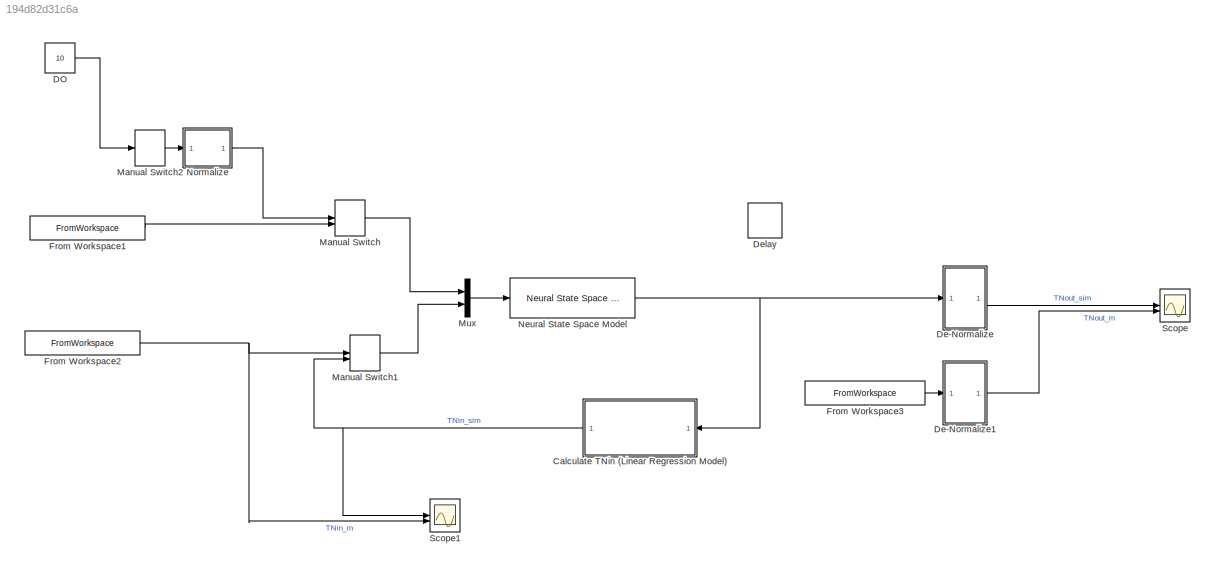
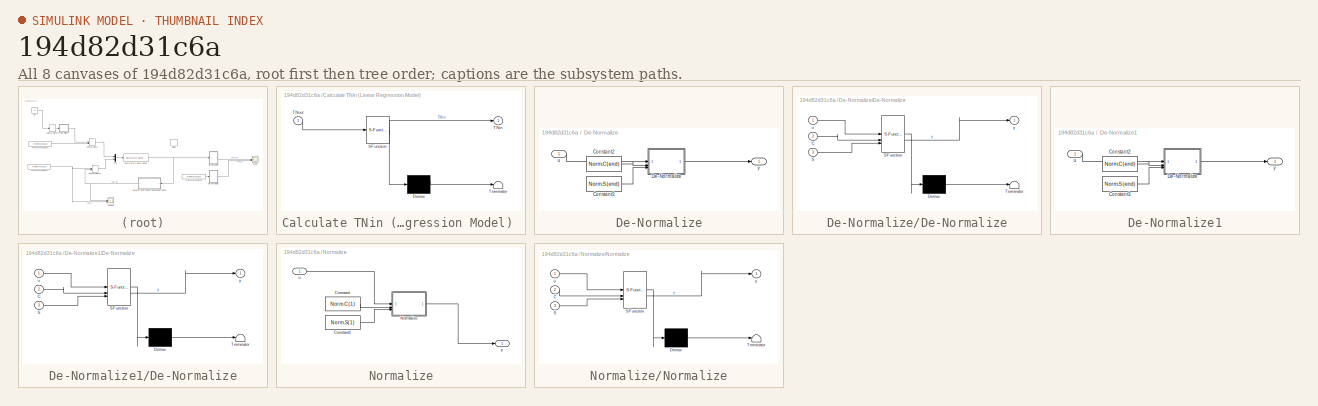
[diagram: thumbnail index - all 8 canvases of the model, root first then tree order]
MODEL slx_194d82d31c6a
KIND model
CONFIG AbsTol = auto
CONFIG EnableMultiTasking = off
CONFIG FixedStep = 0.0104
CONFIG InitFcn = Init_TestModel;
CONFIG MaxStep = auto
CONFIG MinStep = auto
CONFIG RelTol = 1e-3
CONFIG SampleTimeConstraint = Unconstrained
CONFIG SolverName = ode45
CONFIG StartFcn = Init_TestModel;
CONFIG StartTime = 0.0
CONFIG StopTime = 1
BLOCK [SubSystem] Calculate TNin (Linear Regression Model) 
  ErrorFcn = Stateflow.Translate.translate
  PermitHierarchicalResolution = ExplicitOnly
  SFBlockType = MATLAB Function
  TreatAsAtomicUnit = on
BLOCK [Demux] Calculate TNin (Linear Regression Model) / Demux 
  Outputs = 1
BLOCK [S-Function] Calculate TNin (Linear Regression Model) / SFunction 
  EnableBusSupport = on
  FunctionName = sf_sfun
  Parameters = p_reg
  PortCounts = [1 2]
  SFcnIsStateOwnerBlock = off
  SFunctionDeploymentMode = off
  Tag = Stateflow S-Function 2
BLOCK [Terminator] Calculate TNin (Linear Regression Model) / Terminator 
BLOCK [Outport] Calculate TNin (Linear Regression Model) /TNin
BLOCK [Inport] Calculate TNin (Linear Regression Model) /TNout
BLOCK [Constant] DO
  Value = 10
BLOCK [SubSystem] De-Normalize
BLOCK [Constant] De-Normalize/Constant2
  Value = Norm.C(end)
BLOCK [Constant] De-Normalize/Constant3
  Value = Norm.S(end)
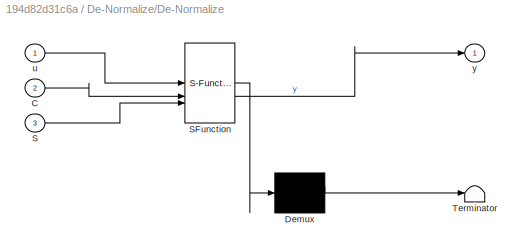
BLOCK [SubSystem] De-Normalize/De-Normalize
  ErrorFcn = Stateflow.Translate.translate
  PermitHierarchicalResolution = ExplicitOnly
  SFBlockType = MATLAB Function
  TreatAsAtomicUnit = on
BLOCK [Demux] De-Normalize/De-Normalize/ Demux 
  Outputs = 1
BLOCK [S-Function] De-Normalize/De-Normalize/ SFunction 
  EnableBusSupport = on
  FunctionName = sf_sfun
  PortCounts = [3 2]
  SFcnIsStateOwnerBlock = off
  SFunctionDeploymentMode = off
  Tag = Stateflow S-Function 3
BLOCK [Terminator] De-Normalize/De-Normalize/ Terminator 
BLOCK [Inport] De-Normalize/De-Normalize/C
  Port = 2
BLOCK [Inport] De-Normalize/De-Normalize/S
  Port = 3
BLOCK [Inport] De-Normalize/De-Normalize/u
BLOCK [Outport] De-Normalize/De-Normalize/y
BLOCK [Inport] De-Normalize/u
BLOCK [Outport] De-Normalize/y
BLOCK [SubSystem] De-Normalize1
BLOCK [Constant] De-Normalize1/Constant2
  Value = Norm.C(end)
BLOCK [Constant] De-Normalize1/Constant3
  Value = Norm.S(end)
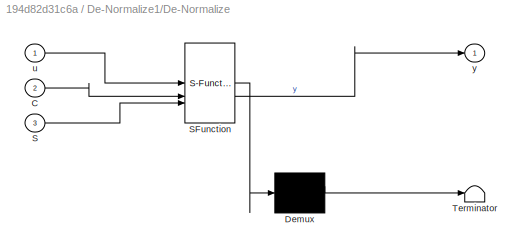
BLOCK [SubSystem] De-Normalize1/De-Normalize
  ErrorFcn = Stateflow.Translate.translate
  PermitHierarchicalResolution = ExplicitOnly
  SFBlockType = MATLAB Function
  TreatAsAtomicUnit = on
BLOCK [Demux] De-Normalize1/De-Normalize/ Demux 
  Outputs = 1
BLOCK [S-Function] De-Normalize1/De-Normalize/ SFunction 
  EnableBusSupport = on
  FunctionName = sf_sfun
  PortCounts = [3 2]
  SFcnIsStateOwnerBlock = off
  SFunctionDeploymentMode = off
  Tag = Stateflow S-Function 4
BLOCK [Terminator] De-Normalize1/De-Normalize/ Terminator 
BLOCK [Inport] De-Normalize1/De-Normalize/C
  Port = 2
BLOCK [Inport] De-Normalize1/De-Normalize/S
  Port = 3
BLOCK [Inport] De-Normalize1/De-Normalize/u
BLOCK [Outport] De-Normalize1/De-Normalize/y
BLOCK [Inport] De-Normalize1/u
BLOCK [Outport] De-Normalize1/y
BLOCK [Delay] Delay
  DelayLength = 1
  InputPortMap = u0
  NameLocation = left
BLOCK [FromWorkspace] From Workspace1
  VariableName = [DataRep(:,1),DataRep(:,2)]
BLOCK [FromWorkspace] From Workspace2
  VariableName = [DataRep(:,1),DataRep(:,3)]
BLOCK [FromWorkspace] From Workspace3
  VariableName = [DataRep(:,1),DataRep(:,end)]
BLOCK [ManualSwitch] Manual Switch
  CurrentSetting = 0
BLOCK [ManualSwitch] Manual Switch1
  CurrentSetting = 0
BLOCK [ManualSwitch] Manual Switch2
BLOCK [Mux] Mux
  DisplayOption = bar
  Inputs = 2
BLOCK [Reference] Neural State Space Model  REF=slident/Models/Neural State Space Model  (lib defined in mdl_f7d4911ca73a)
  SourceBlock = slident/Models/Neural State Space Model
  SourceType = Neural State Space Model
BLOCK [SubSystem] Normalize
BLOCK [Constant] Normalize/Constant
  Value = Norm.C(1)
BLOCK [Constant] Normalize/Constant1
  Value = Norm.S(1)
BLOCK [SubSystem] Normalize/Normalize
  ErrorFcn = Stateflow.Translate.translate
  PermitHierarchicalResolution = ExplicitOnly
  SFBlockType = MATLAB Function
  TreatAsAtomicUnit = on
BLOCK [Demux] Normalize/Normalize/ Demux 
  Outputs = 1
BLOCK [S-Function] Normalize/Normalize/ SFunction 
  EnableBusSupport = on
  FunctionName = sf_sfun
  PortCounts = [3 2]
  SFcnIsStateOwnerBlock = off
  SFunctionDeploymentMode = off
  Tag = Stateflow S-Function 1
BLOCK [Terminator] Normalize/Normalize/ Terminator 
BLOCK [Inport] Normalize/Normalize/C
  Port = 2
BLOCK [Inport] Normalize/Normalize/S
  Port = 3
BLOCK [Inport] Normalize/Normalize/u
BLOCK [Outport] Normalize/Normalize/y
BLOCK [Inport] Normalize/u
BLOCK [Outport] Normalize/y
BLOCK [Scope] Scope
  Floating = off
  NumInputPorts = 2
  ScopeSpecificationString = Simulink.scopes.TimeScopeBlockCfg('CurrentConfiguration', extmgr.ConfigurationSet(extmgr.Configuration('Core','General UI',true),extmgr.Configuration('Core','Source UI',true),extmgr.Configuration('Sources','WiredSimulink',true),extmgr.Configuration('Visuals','Time Domain',true,'SerializedDisplays',{struct('MinYLimReal','3.44534','MaxYLimReal','11.08668','YLabelReal','','MinYLimMag','3.44534','MaxY...<+1413ch>
BLOCK [Scope] Scope1
  Floating = off
  NumInputPorts = 2
  ScopeSpecificationString = Simulink.scopes.TimeScopeBlockCfg('CurrentConfiguration', extmgr.ConfigurationSet(extmgr.Configuration('Core','General UI',true),extmgr.Configuration('Core','Source UI',true),extmgr.Configuration('Sources','WiredSimulink',true,'DataLoggingVariableName','ScopeData1'),extmgr.Configuration('Visuals','Time Domain',true,'SerializedDisplays',{struct('MinYLimReal','-1.75956','MaxYLimReal','5.14853','YLab...<+1447ch>
NET Calculate TNin (Linear Regression Model) :1 -> Manual Switch1:2, Scope1:1
LINE DO:1 -> Manual Switch2:1
LINE De-Normalize/Constant2:1 -> De-Normalize/De-Normalize:2
LINE De-Normalize/Constant3:1 -> De-Normalize/De-Normalize:3
LINE De-Normalize/De-Normalize:1 -> De-Normalize/y:1
LINE De-Normalize/u:1 -> De-Normalize/De-Normalize:1
LINE De-Normalize1/Constant2:1 -> De-Normalize1/De-Normalize:2
LINE De-Normalize1/Constant3:1 -> De-Normalize1/De-Normalize:3
LINE De-Normalize1/De-Normalize:1 -> De-Normalize1/y:1
LINE De-Normalize1/u:1 -> De-Normalize1/De-Normalize:1
LINE De-Normalize1:1 -> Scope:2
LINE De-Normalize:1 -> Scope:1
LINE From Workspace1:1 -> Manual Switch:2
NET From Workspace2:1 -> Manual Switch1:1, Scope1:2
LINE From Workspace3:1 -> De-Normalize1:1
LINE Manual Switch1:1 -> Mux:2
LINE Manual Switch2:1 -> Normalize:1
LINE Manual Switch:1 -> Mux:1
LINE Mux:1 -> Neural State Space Model:1
NET Neural State Space Model:1 -> Calculate TNin (Linear Regression Model) :1, De-Normalize:1
LINE Normalize/Constant1:1 -> Normalize/Normalize:3
LINE Normalize/Constant:1 -> Normalize/Normalize:2
LINE Normalize/Normalize:1 -> Normalize/y:1
LINE Normalize/u:1 -> Normalize/Normalize:1
LINE Normalize:1 -> Manual Switch:1
note: NET lines group one-source signal fan-out (src -> all destinations, sorted); 1:1 wires keep LINE
CHART Normalize/Normalize states=1 transitions=1
  STATE_LABEL 'eML_blk_kernel()'
  STATE_LABEL 'SCRIPT:\nfunction y = fcn(u,C,S)\n\ny = (u - C)/S;\n\nend'
CHART Calculate TNin
(Linear Regression Model)
 states=1 transitions=1
  STATE_LABEL 'eML_blk_kernel()'
  STATE_LABEL 'SCRIPT:\nfunction TNin = fcn(TNout,p_reg)\n\nTNin = polyval(p_reg,TNout);\n\nend\n'
CHART De-Normalize/De-Normalize states=1 transitions=1
  STATE_LABEL 'eML_blk_kernel()'
  STATE_LABEL 'SCRIPT:\nfunction y = fcn(u,C,S)\n\ny = u * S + C;\n\nend'
CHART De-Normalize1/De-Normalize states=1 transitions=1
  STATE_LABEL 'eML_blk_kernel()'
  STATE_LABEL 'SCRIPT:\nfunction y = fcn(u,C,S)\n\ny = u * S + C;\n\nend'
CHART  states=0 transitions=0
CHART  states=0 transitions=0
CHART  states=0 transitions=0
CHART  states=0 transitions=0
